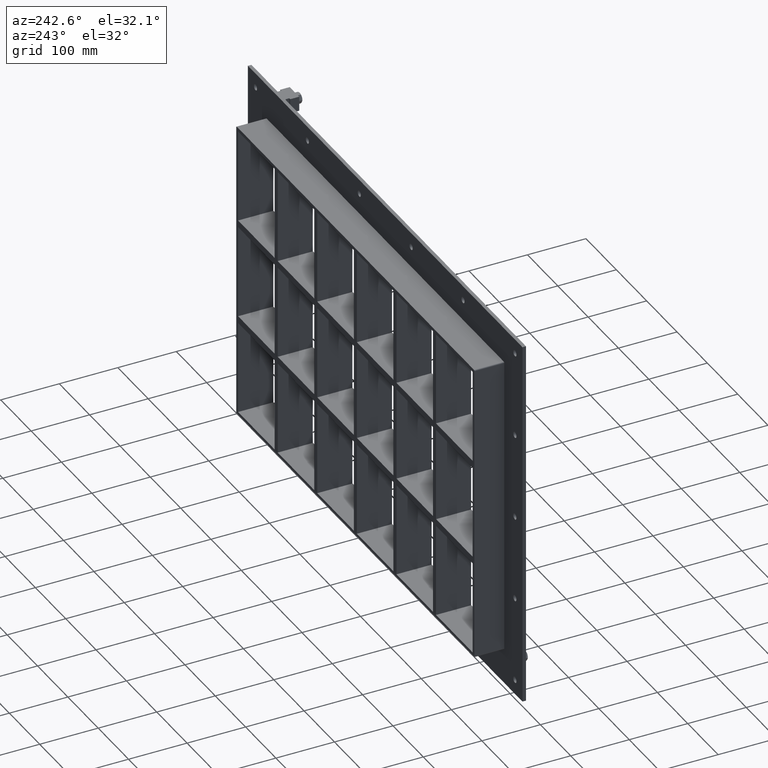
[diagram: clean part render]
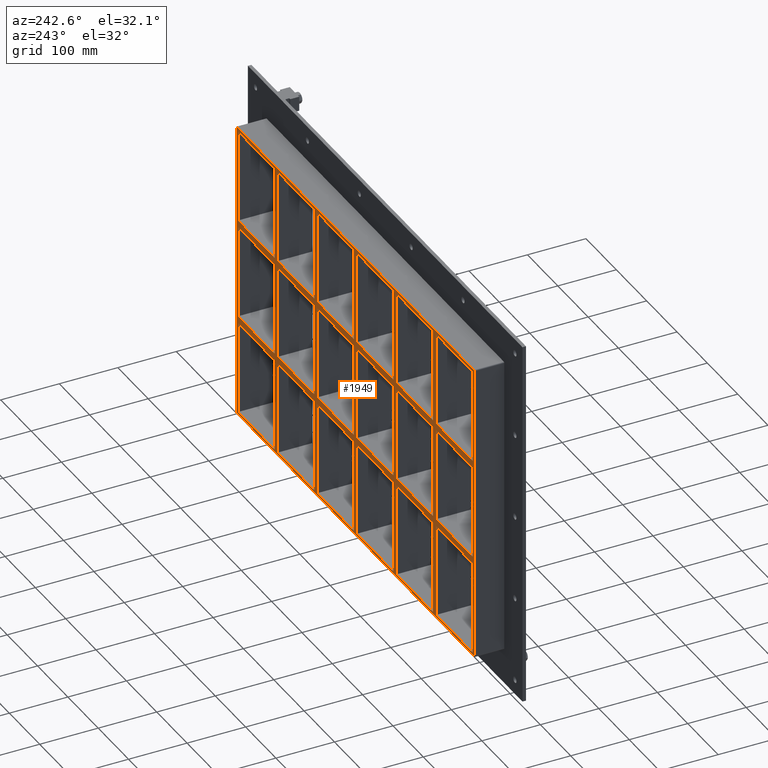
[diagram: same view with one face highlighted and labeled with its STEP entity id]
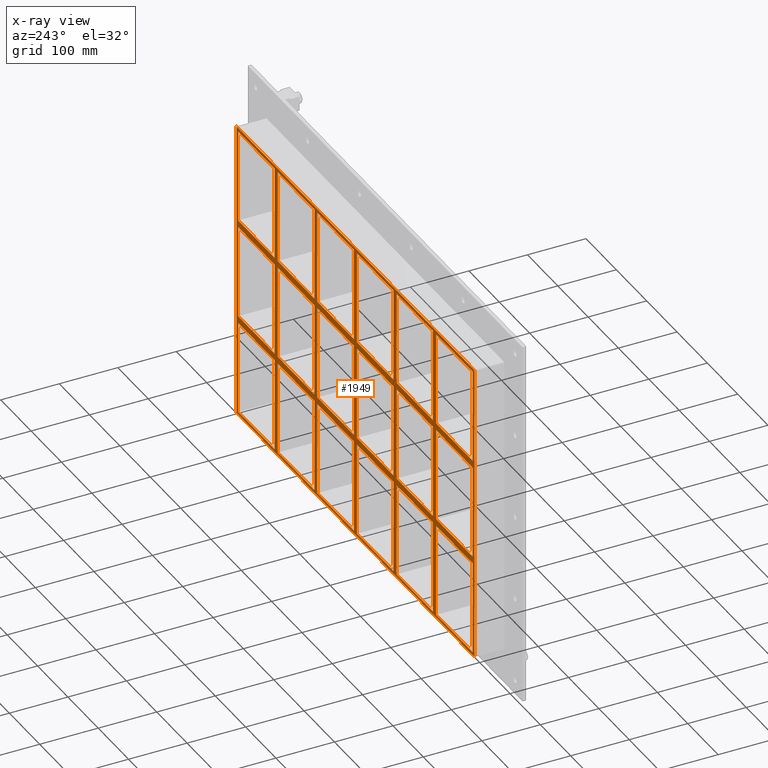
[diagram: x-ray of the same camera — body ghosted, the highlighted face saturated]
A machine part, auxiliary view. The second image highlights one B-rep face of the part: STEP entity #1949.
The next image is the same camera in x-ray: the body ghosted, the highlighted face saturated — about 0% of this face is hidden behind the body in this view.
In plain terms, the highlighted planar face has unit normal (0, 1, 0).
Its self-contained STEP definition (entity closure, byte-faithful):
#579=CARTESIAN_POINT('',(-266.00000000000028,57.0,79.749999999989143));
#580=VERTEX_POINT('',#579);
#595=CARTESIAN_POINT('',(-386.49999999999858,57.0,79.749999999989114));
#596=VERTEX_POINT('',#595);
#603=CARTESIAN_POINT('',(-266.00000000000023,57.0,79.749999999989114));
#604=DIRECTION('',(-1.0,0.0,0.0));
#605=VECTOR('',#604,120.49999999999841);
#606=LINE('',#603,#605);
#607=EDGE_CURVE('',#580,#596,#606,.T.);
#619=CARTESIAN_POINT('',(-135.50000000000026,57.0,79.749999999989114));
#620=VERTEX_POINT('',#619);
#635=CARTESIAN_POINT('',(-256.00000000000364,57.0,79.749999999989114));
#636=VERTEX_POINT('',#635);
#643=CARTESIAN_POINT('',(-135.50000000000023,57.0,79.749999999989114));
#644=DIRECTION('',(-1.0,0.0,0.0));
#645=VECTOR('',#644,120.50000000000341);
#646=LINE('',#643,#645);
#647=EDGE_CURVE('',#620,#636,#646,.T.);
#659=CARTESIAN_POINT('',(-5.000000000000213,57.0,79.749999999989129));
#660=VERTEX_POINT('',#659);
#675=CARTESIAN_POINT('',(-125.50000000000367,57.0,79.749999999989114));
#676=VERTEX_POINT('',#675);
#683=CARTESIAN_POINT('',(-5.000000000000227,57.0,79.749999999989129));
#684=DIRECTION('',(-1.0,0.0,0.0));
#685=VECTOR('',#684,120.50000000000341);
#686=LINE('',#683,#685);
#687=EDGE_CURVE('',#660,#676,#686,.T.);
#699=CARTESIAN_POINT('',(125.4999999999998,57.0,79.749999999989129));
#700=VERTEX_POINT('',#699);
#715=CARTESIAN_POINT('',(4.999999999996376,57.0,79.749999999989129));
#716=VERTEX_POINT('',#715);
#723=CARTESIAN_POINT('',(125.49999999999977,57.0,79.749999999989129));
#724=DIRECTION('',(-1.0,0.0,0.0));
#725=VECTOR('',#724,120.50000000000341);
#726=LINE('',#723,#725);
#727=EDGE_CURVE('',#700,#716,#726,.T.);
#737=CARTESIAN_POINT('',(265.99999999999642,57.0,79.749999999989129));
#738=VERTEX_POINT('',#737);
#747=CARTESIAN_POINT('',(386.49999999999642,57.0,79.749999999989143));
#748=VERTEX_POINT('',#747);
#749=CARTESIAN_POINT('',(386.49999999999636,57.0,79.749999999989143));
#750=DIRECTION('',(-1.0,0.0,0.0));
#751=VECTOR('',#750,120.49999999999994);
#752=LINE('',#749,#751);
#753=EDGE_CURVE('',#748,#738,#752,.T.);
#779=CARTESIAN_POINT('',(255.9999999999998,57.0,79.749999999989129));
#780=VERTEX_POINT('',#779);
#795=CARTESIAN_POINT('',(135.49999999999642,57.0,79.749999999989129));
#796=VERTEX_POINT('',#795);
#803=CARTESIAN_POINT('',(255.9999999999998,57.0,79.749999999989143));
#804=DIRECTION('',(-1.0,0.0,0.0));
#805=VECTOR('',#804,120.50000000000338);
#806=LINE('',#803,#805);
#807=EDGE_CURVE('',#780,#796,#806,.T.);
#817=CARTESIAN_POINT('',(-266.00000000000028,57.0,91.749999999999829));
#818=VERTEX_POINT('',#817);
#827=CARTESIAN_POINT('',(-386.49999999999858,57.0,91.749999999999801));
#828=VERTEX_POINT('',#827);
#829=CARTESIAN_POINT('',(-386.49999999999858,57.0,91.749999999999801));
#830=DIRECTION('',(1.0,0.0,0.0));
#831=VECTOR('',#830,120.49999999999829);
#832=LINE('',#829,#831);
#833=EDGE_CURVE('',#828,#818,#832,.T.);
#859=CARTESIAN_POINT('',(265.99999999999648,57.0,91.749999999999801));
#860=VERTEX_POINT('',#859);
#875=CARTESIAN_POINT('',(386.49999999999955,57.0,91.749999999999801));
#876=VERTEX_POINT('',#875);
#883=CARTESIAN_POINT('',(265.99999999999642,57.0,91.749999999999801));
#884=DIRECTION('',(1.0,0.0,0.0));
#885=VECTOR('',#884,120.50000000000318);
#886=LINE('',#883,#885);
#887=EDGE_CURVE('',#860,#876,#886,.T.);
#897=CARTESIAN_POINT('',(-135.50000000000026,57.0,91.749999999999801));
#898=VERTEX_POINT('',#897);
#907=CARTESIAN_POINT('',(-256.00000000000364,57.0,91.749999999999801));
#908=VERTEX_POINT('',#907);
#909=CARTESIAN_POINT('',(-256.00000000000364,57.0,91.749999999999801));
#910=DIRECTION('',(1.0,0.0,0.0));
#911=VECTOR('',#910,120.50000000000335);
#912=LINE('',#909,#911);
#913=EDGE_CURVE('',#908,#898,#912,.T.);
#937=CARTESIAN_POINT('',(-5.000000000000213,57.0,91.749999999999801));
#938=VERTEX_POINT('',#937);
#947=CARTESIAN_POINT('',(-125.50000000000364,57.0,91.749999999999801));
#948=VERTEX_POINT('',#947);
#949=CARTESIAN_POINT('',(-125.50000000000364,57.0,91.749999999999801));
#950=DIRECTION('',(1.0,0.0,0.0));
#951=VECTOR('',#950,120.50000000000341);
#952=LINE('',#949,#951);
#953=EDGE_CURVE('',#948,#938,#952,.T.);
#977=CARTESIAN_POINT('',(125.49999999999983,57.0,91.749999999999801));
#978=VERTEX_POINT('',#977);
#987=CARTESIAN_POINT('',(4.999999999996376,57.0,91.749999999999801));
#988=VERTEX_POINT('',#987);
#989=CARTESIAN_POINT('',(4.999999999996362,57.0,91.749999999999801));
#990=DIRECTION('',(1.0,0.0,0.0));
#991=VECTOR('',#990,120.50000000000347);
#992=LINE('',#989,#991);
#993=EDGE_CURVE('',#988,#978,#992,.T.);
#1017=CARTESIAN_POINT('',(255.99999999999989,57.0,91.749999999999801));
#1018=VERTEX_POINT('',#1017);
#1027=CARTESIAN_POINT('',(135.49999999999642,57.0,91.749999999999801));
#1028=VERTEX_POINT('',#1027);
#1029=CARTESIAN_POINT('',(135.49999999999642,57.0,91.749999999999801));
#1030=DIRECTION('',(1.0,0.0,0.0));
#1031=VECTOR('',#1030,120.50000000000341);
#1032=LINE('',#1029,#1031);
#1033=EDGE_CURVE('',#1028,#1018,#1032,.T.);
#1058=CARTESIAN_POINT('',(-386.50000000000006,57.0,251.25));
#1059=VERTEX_POINT('',#1058);
#1060=CARTESIAN_POINT('',(-386.50000000000006,57.0,251.25));
#1061=DIRECTION('',(0.0,0.0,-1.0));
#1062=VECTOR('',#1061,159.5000000000002);
#1063=LINE('',#1060,#1062);
#1064=EDGE_CURVE('',#1059,#828,#1063,.T.);
#1089=CARTESIAN_POINT('',(386.49999999999955,57.0,-79.750000000000227));
#1090=VERTEX_POINT('',#1089);
#1091=CARTESIAN_POINT('',(386.50000000000006,57.0,-79.750000000000227));
#1092=DIRECTION('',(0.0,0.0,1.0));
#1093=VECTOR('',#1092,159.49999999998937);
#1094=LINE('',#1091,#1093);
#1095=EDGE_CURVE('',#1090,#748,#1094,.T.);
#1128=CARTESIAN_POINT('',(386.50000000000006,57.0,251.25));
#1129=VERTEX_POINT('',#1128);
#1136=CARTESIAN_POINT('',(386.50000000000006,57.0,91.749999999999801));
#1137=DIRECTION('',(0.0,0.0,1.0));
#1138=VECTOR('',#1137,159.5000000000002);
#1139=LINE('',#1136,#1138);
#1140=EDGE_CURVE('',#876,#1129,#1139,.T.);
#1159=CARTESIAN_POINT('',(255.9999999999998,57.0,251.25));
#1160=VERTEX_POINT('',#1159);
#1167=CARTESIAN_POINT('',(255.9999999999998,57.0,91.749999999999829));
#1168=DIRECTION('',(0.0,0.0,1.0));
#1169=VECTOR('',#1168,159.50000000000017);
#1170=LINE('',#1167,#1169);
#1171=EDGE_CURVE('',#1018,#1160,#1170,.T.);
#1182=CARTESIAN_POINT('',(265.99999999999642,57.0,251.25));
#1183=VERTEX_POINT('',#1182);
#1184=CARTESIAN_POINT('',(265.99999999999642,57.0,251.25));
#1185=DIRECTION('',(0.0,0.0,-1.0));
#1186=VECTOR('',#1185,159.5000000000002);
#1187=LINE('',#1184,#1186);
#1188=EDGE_CURVE('',#1183,#860,#1187,.T.);
#1221=CARTESIAN_POINT('',(125.4999999999998,57.0,251.25));
#1222=VERTEX_POINT('',#1221);
#1229=CARTESIAN_POINT('',(125.4999999999998,57.0,91.749999999999829));
#1230=DIRECTION('',(0.0,0.0,1.0));
#1231=VECTOR('',#1230,159.50000000000017);
#1232=LINE('',#1229,#1231);
#1233=EDGE_CURVE('',#978,#1222,#1232,.T.);
#1244=CARTESIAN_POINT('',(135.49999999999642,57.0,251.25));
#1245=VERTEX_POINT('',#1244);
#1246=CARTESIAN_POINT('',(135.49999999999642,57.0,251.25));
#1247=DIRECTION('',(0.0,0.0,-1.0));
#1248=VECTOR('',#1247,159.5000000000002);
#1249=LINE('',#1246,#1248);
#1250=EDGE_CURVE('',#1245,#1028,#1249,.T.);
#1283=CARTESIAN_POINT('',(-5.000000000000249,57.0,251.25));
#1284=VERTEX_POINT('',#1283);
#1291=CARTESIAN_POINT('',(-5.000000000000237,57.0,91.749999999999829));
#1292=DIRECTION('',(0.0,0.0,1.0));
#1293=VECTOR('',#1292,159.50000000000017);
#1294=LINE('',#1291,#1293);
#1295=EDGE_CURVE('',#938,#1284,#1294,.T.);
#1306=CARTESIAN_POINT('',(4.999999999996376,57.0,251.25));
#1307=VERTEX_POINT('',#1306);
#1308=CARTESIAN_POINT('',(4.999999999996376,57.0,251.25));
#1309=DIRECTION('',(0.0,0.0,-1.0));
#1310=VECTOR('',#1309,159.5000000000002);
#1311=LINE('',#1308,#1310);
#1312=EDGE_CURVE('',#1307,#988,#1311,.T.);
#1345=CARTESIAN_POINT('',(-135.50000000000026,57.0,251.25));
#1346=VERTEX_POINT('',#1345);
#1353=CARTESIAN_POINT('',(-135.50000000000026,57.0,91.749999999999829));
#1354=DIRECTION('',(0.0,0.0,1.0));
#1355=VECTOR('',#1354,159.50000000000017);
#1356=LINE('',#1353,#1355);
#1357=EDGE_CURVE('',#898,#1346,#1356,.T.);
#1368=CARTESIAN_POINT('',(-125.50000000000364,57.0,251.25));
#1369=VERTEX_POINT('',#1368);
#1370=CARTESIAN_POINT('',(-125.50000000000364,57.0,251.25));
#1371=DIRECTION('',(0.0,0.0,-1.0));
#1372=VECTOR('',#1371,159.5000000000002);
#1373=LINE('',#1370,#1372);
#1374=EDGE_CURVE('',#1369,#948,#1373,.T.);
#1407=CARTESIAN_POINT('',(-266.00000000000028,57.0,251.25));
#1408=VERTEX_POINT('',#1407);
#1415=CARTESIAN_POINT('',(-266.00000000000023,57.0,91.749999999999829));
#1416=DIRECTION('',(0.0,0.0,1.0));
#1417=VECTOR('',#1416,159.50000000000017);
#1418=LINE('',#1415,#1417);
#1419=EDGE_CURVE('',#818,#1408,#1418,.T.);
#1430=CARTESIAN_POINT('',(-266.00000000000023,57.0,-79.750000000000227));
#1431=VERTEX_POINT('',#1430);
#1432=CARTESIAN_POINT('',(-266.00000000000023,57.0,-79.750000000000227));
#1433=DIRECTION('',(0.0,0.0,1.0));
#1434=VECTOR('',#1433,159.49999999998937);
#1435=LINE('',#1432,#1434);
#1436=EDGE_CURVE('',#1431,#580,#1435,.T.);
#1461=CARTESIAN_POINT('',(-256.00000000000364,57.0,251.25));
#1462=VERTEX_POINT('',#1461);
#1463=CARTESIAN_POINT('',(-256.00000000000364,57.0,251.25));
#1464=DIRECTION('',(0.0,0.0,-1.0));
#1465=VECTOR('',#1464,159.5000000000002);
#1466=LINE('',#1463,#1465);
#1467=EDGE_CURVE('',#1462,#908,#1466,.T.);
#1486=CARTESIAN_POINT('',(3.697611E-014,57.0,0.0));
#1487=DIRECTION('',(0.0,1.0,0.0));
#1488=DIRECTION('',(0.0,0.0,1.0));
#1489=AXIS2_PLACEMENT_3D('',#1486,#1487,#1488);
#1490=PLANE('',#1489);
#1491=CARTESIAN_POINT('',(-392.50000000000006,57.0,-255.25000000000003));
#1492=VERTEX_POINT('',#1491);
#1493=CARTESIAN_POINT('',(392.50000000000011,57.0,-255.25));
#1494=VERTEX_POINT('',#1493);
#1495=CARTESIAN_POINT('',(-392.5,57.0,-255.25000000000003));
#1496=DIRECTION('',(1.0,0.0,0.0));
#1497=VECTOR('',#1496,785.00000000000011);
#1498=LINE('',#1495,#1497);
#1499=EDGE_CURVE('',#1492,#1494,#1498,.T.);
#1500=ORIENTED_EDGE('',*,*,#1499,.F.);
#1501=CARTESIAN_POINT('',(-392.50000000000006,57.0,255.25));
#1502=VERTEX_POINT('',#1501);
#1503=CARTESIAN_POINT('',(-392.50000000000006,57.0,-255.25));
#1504=DIRECTION('',(0.0,0.0,1.0));
#1505=VECTOR('',#1504,510.5);
#1506=LINE('',#1503,#1505);
#1507=EDGE_CURVE('',#1492,#1502,#1506,.T.);
#1508=ORIENTED_EDGE('',*,*,#1507,.T.);
#1509=CARTESIAN_POINT('',(-390.50000000000006,57.0,257.25));
#1510=VERTEX_POINT('',#1509);
#1511=CARTESIAN_POINT('',(-390.50000000000006,57.0,255.25));
#1512=DIRECTION('',(0.0,-1.0,0.0));
#1513=DIRECTION('',(-0.707106781186548,0.0,0.707106781186548));
#1514=AXIS2_PLACEMENT_3D('',#1511,#1512,#1513);
#1515=CIRCLE('',#1514,2.0);
#1516=EDGE_CURVE('',#1510,#1502,#1515,.T.);
#1517=ORIENTED_EDGE('',*,*,#1516,.F.);
#1518=CARTESIAN_POINT('',(390.50000000000011,57.0,257.25));
#1519=VERTEX_POINT('',#1518);
#1520=CARTESIAN_POINT('',(-390.5,57.0,257.25));
#1521=DIRECTION('',(1.0,0.0,0.0));
#1522=VECTOR('',#1521,781.00000000000011);
#1523=LINE('',#1520,#1522);
#1524=EDGE_CURVE('',#1510,#1519,#1523,.T.);
#1525=ORIENTED_EDGE('',*,*,#1524,.T.);
#1526=CARTESIAN_POINT('',(392.50000000000011,57.0,255.25000000000003));
#1527=VERTEX_POINT('',#1526);
#1528=CARTESIAN_POINT('',(390.50000000000011,57.0,255.25000000000003));
#1529=DIRECTION('',(0.0,-1.0,0.0));
#1530=DIRECTION('',(0.70710678118656,0.0,0.707106781186535));
#1531=AXIS2_PLACEMENT_3D('',#1528,#1529,#1530);
#1532=CIRCLE('',#1531,2.0);
#1533=EDGE_CURVE('',#1527,#1519,#1532,.T.);
#1534=ORIENTED_EDGE('',*,*,#1533,.F.);
#1535=CARTESIAN_POINT('',(392.50000000000011,57.0,255.25));
#1536=DIRECTION('',(0.0,0.0,-1.0));
#1537=VECTOR('',#1536,510.5);
#1538=LINE('',#1535,#1537);
#1539=EDGE_CURVE('',#1527,#1494,#1538,.T.);
#1540=ORIENTED_EDGE('',*,*,#1539,.T.);
#1541=EDGE_LOOP('',(#1500,#1508,#1517,#1525,#1534,#1540));
#1542=FACE_OUTER_BOUND('',#1541,.T.);
#1543=CARTESIAN_POINT('',(-386.49999999999858,57.0,-79.750000000000227));
#1544=VERTEX_POINT('',#1543);
#1545=CARTESIAN_POINT('',(-386.50000000000006,57.0,79.749999999989114));
#1546=DIRECTION('',(0.0,0.0,-1.0));
#1547=VECTOR('',#1546,159.49999999998934);
#1548=LINE('',#1545,#1547);
#1549=EDGE_CURVE('',#596,#1544,#1548,.T.);
#1550=ORIENTED_EDGE('',*,*,#1549,.T.);
#1551=CARTESIAN_POINT('',(-386.49999999999858,57.0,-79.750000000000227));
#1552=DIRECTION('',(1.0,0.0,0.0));
#1553=VECTOR('',#1552,120.49999999999835);
#1554=LINE('',#1551,#1553);
#1555=EDGE_CURVE('',#1544,#1431,#1554,.T.);
#1556=ORIENTED_EDGE('',*,*,#1555,.T.);
#1557=ORIENTED_EDGE('',*,*,#1436,.T.);
#1558=ORIENTED_EDGE('',*,*,#607,.T.);
#1559=EDGE_LOOP('',(#1550,#1556,#1557,#1558));
#1560=FACE_BOUND('',#1559,.T.);
#1561=ORIENTED_EDGE('',*,*,#1140,.T.);
#1562=CARTESIAN_POINT('',(386.50000000000011,57.0,251.25));
#1563=DIRECTION('',(-1.0,0.0,0.0));
#1564=VECTOR('',#1563,120.50000000000369);
#1565=LINE('',#1562,#1564);
#1566=EDGE_CURVE('',#1129,#1183,#1565,.T.);
#1567=ORIENTED_EDGE('',*,*,#1566,.T.);
#1568=ORIENTED_EDGE('',*,*,#1188,.T.);
#1569=ORIENTED_EDGE('',*,*,#887,.T.);
#1570=EDGE_LOOP('',(#1561,#1567,#1568,#1569));
#1571=FACE_BOUND('',#1570,.T.);
#1572=ORIENTED_EDGE('',*,*,#1171,.T.);
#1573=CARTESIAN_POINT('',(255.99999999999983,57.0,251.25));
#1574=DIRECTION('',(-1.0,0.0,0.0));
#1575=VECTOR('',#1574,120.50000000000335);
#1576=LINE('',#1573,#1575);
#1577=EDGE_CURVE('',#1160,#1245,#1576,.T.);
#1578=ORIENTED_EDGE('',*,*,#1577,.T.);
#1579=ORIENTED_EDGE('',*,*,#1250,.T.);
#1580=ORIENTED_EDGE('',*,*,#1033,.T.);
#1581=EDGE_LOOP('',(#1572,#1578,#1579,#1580));
#1582=FACE_BOUND('',#1581,.T.);
#1583=ORIENTED_EDGE('',*,*,#1233,.T.);
#1584=CARTESIAN_POINT('',(125.49999999999977,57.0,251.25));
#1585=DIRECTION('',(-1.0,0.0,0.0));
#1586=VECTOR('',#1585,120.50000000000341);
#1587=LINE('',#1584,#1586);
#1588=EDGE_CURVE('',#1222,#1307,#1587,.T.);
#1589=ORIENTED_EDGE('',*,*,#1588,.T.);
#1590=ORIENTED_EDGE('',*,*,#1312,.T.);
#1591=ORIENTED_EDGE('',*,*,#993,.T.);
#1592=EDGE_LOOP('',(#1583,#1589,#1590,#1591));
#1593=FACE_BOUND('',#1592,.T.);
#1594=ORIENTED_EDGE('',*,*,#1295,.T.);
#1595=CARTESIAN_POINT('',(-5.000000000000256,57.0,251.25));
#1596=DIRECTION('',(-1.0,0.0,0.0));
#1597=VECTOR('',#1596,120.50000000000338);
#1598=LINE('',#1595,#1597);
#1599=EDGE_CURVE('',#1284,#1369,#1598,.T.);
#1600=ORIENTED_EDGE('',*,*,#1599,.T.);
#1601=ORIENTED_EDGE('',*,*,#1374,.T.);
#1602=ORIENTED_EDGE('',*,*,#953,.T.);
#1603=EDGE_LOOP('',(#1594,#1600,#1601,#1602));
#1604=FACE_BOUND('',#1603,.T.);
#1605=ORIENTED_EDGE('',*,*,#1357,.T.);
#1606=CARTESIAN_POINT('',(-135.50000000000026,57.0,251.25));
#1607=DIRECTION('',(-1.0,0.0,0.0));
#1608=VECTOR('',#1607,120.50000000000338);
#1609=LINE('',#1606,#1608);
#1610=EDGE_CURVE('',#1346,#1462,#1609,.T.);
#1611=ORIENTED_EDGE('',*,*,#1610,.T.);
#1612=ORIENTED_EDGE('',*,*,#1467,.T.);
#1613=ORIENTED_EDGE('',*,*,#913,.T.);
#1614=EDGE_LOOP('',(#1605,#1611,#1612,#1613));
#1615=FACE_BOUND('',#1614,.T.);
#1616=ORIENTED_EDGE('',*,*,#753,.T.);
#1617=CARTESIAN_POINT('',(265.99999999999642,57.0,-79.750000000000227));
#1618=VERTEX_POINT('',#1617);
#1619=CARTESIAN_POINT('',(265.99999999999642,57.0,79.749999999989143));
#1620=DIRECTION('',(0.0,0.0,-1.0));
#1621=VECTOR('',#1620,159.49999999998937);
#1622=LINE('',#1619,#1621);
#1623=EDGE_CURVE('',#738,#1618,#1622,.T.);
#1624=ORIENTED_EDGE('',*,*,#1623,.T.);
#1625=CARTESIAN_POINT('',(265.99999999999642,57.0,-79.750000000000227));
#1626=DIRECTION('',(1.0,0.0,0.0));
#1627=VECTOR('',#1626,120.50000000000318);
#1628=LINE('',#1625,#1627);
#1629=EDGE_CURVE('',#1618,#1090,#1628,.T.);
#1630=ORIENTED_EDGE('',*,*,#1629,.T.);
#1631=ORIENTED_EDGE('',*,*,#1095,.T.);
#1632=EDGE_LOOP('',(#1616,#1624,#1630,#1631));
#1633=FACE_BOUND('',#1632,.T.);
#1634=ORIENTED_EDGE('',*,*,#807,.T.);
#1635=CARTESIAN_POINT('',(135.49999999999642,57.0,-79.750000000000227));
#1636=VERTEX_POINT('',#1635);
#1637=CARTESIAN_POINT('',(135.49999999999642,57.0,79.749999999989143));
#1638=DIRECTION('',(0.0,0.0,-1.0));
#1639=VECTOR('',#1638,159.49999999998937);
#1640=LINE('',#1637,#1639);
#1641=EDGE_CURVE('',#796,#1636,#1640,.T.);
#1642=ORIENTED_EDGE('',*,*,#1641,.T.);
#1643=CARTESIAN_POINT('',(255.99999999999983,57.0,-79.750000000000227));
#1644=VERTEX_POINT('',#1643);
#1645=CARTESIAN_POINT('',(135.49999999999642,57.0,-79.750000000000227));
#1646=DIRECTION('',(1.0,0.0,0.0));
#1647=VECTOR('',#1646,120.50000000000341);
#1648=LINE('',#1645,#1647);
#1649=EDGE_CURVE('',#1636,#1644,#1648,.T.);
#1650=ORIENTED_EDGE('',*,*,#1649,.T.);
#1651=CARTESIAN_POINT('',(255.99999999999983,57.0,-79.750000000000227));
#1652=DIRECTION('',(0.0,0.0,1.0));
#1653=VECTOR('',#1652,159.49999999998937);
#1654=LINE('',#1651,#1653);
#1655=EDGE_CURVE('',#1644,#780,#1654,.T.);
#1656=ORIENTED_EDGE('',*,*,#1655,.T.);
#1657=EDGE_LOOP('',(#1634,#1642,#1650,#1656));
#1658=FACE_BOUND('',#1657,.T.);
#1659=ORIENTED_EDGE('',*,*,#727,.T.);
#1660=CARTESIAN_POINT('',(4.999999999996376,57.0,-79.750000000000227));
#1661=VERTEX_POINT('',#1660);
#1662=CARTESIAN_POINT('',(4.999999999996376,57.0,79.749999999989143));
#1663=DIRECTION('',(0.0,0.0,-1.0));
#1664=VECTOR('',#1663,159.49999999998937);
#1665=LINE('',#1662,#1664);
#1666=EDGE_CURVE('',#716,#1661,#1665,.T.);
#1667=ORIENTED_EDGE('',*,*,#1666,.T.);
#1668=CARTESIAN_POINT('',(125.49999999999982,57.0,-79.750000000000227));
#1669=VERTEX_POINT('',#1668);
#1670=CARTESIAN_POINT('',(4.999999999996362,57.0,-79.750000000000227));
#1671=DIRECTION('',(1.0,0.0,0.0));
#1672=VECTOR('',#1671,120.50000000000347);
#1673=LINE('',#1670,#1672);
#1674=EDGE_CURVE('',#1661,#1669,#1673,.T.);
#1675=ORIENTED_EDGE('',*,*,#1674,.T.);
#1676=CARTESIAN_POINT('',(125.49999999999982,57.0,-79.750000000000227));
#1677=DIRECTION('',(0.0,0.0,1.0));
#1678=VECTOR('',#1677,159.49999999998937);
#1679=LINE('',#1676,#1678);
#1680=EDGE_CURVE('',#1669,#700,#1679,.T.);
#1681=ORIENTED_EDGE('',*,*,#1680,.T.);
#1682=EDGE_LOOP('',(#1659,#1667,#1675,#1681));
#1683=FACE_BOUND('',#1682,.T.);
#1684=ORIENTED_EDGE('',*,*,#687,.T.);
#1685=CARTESIAN_POINT('',(-125.50000000000364,57.0,-79.750000000000227));
#1686=VERTEX_POINT('',#1685);
#1687=CARTESIAN_POINT('',(-125.50000000000364,57.0,79.749999999989114));
#1688=DIRECTION('',(0.0,0.0,-1.0));
#1689=VECTOR('',#1688,159.49999999998934);
#1690=LINE('',#1687,#1689);
#1691=EDGE_CURVE('',#676,#1686,#1690,.T.);
#1692=ORIENTED_EDGE('',*,*,#1691,.T.);
#1693=CARTESIAN_POINT('',(-5.000000000000226,57.0,-79.750000000000227));
#1694=VERTEX_POINT('',#1693);
#1695=CARTESIAN_POINT('',(-125.50000000000364,57.0,-79.750000000000227));
#1696=DIRECTION('',(1.0,0.0,0.0));
#1697=VECTOR('',#1696,120.50000000000341);
#1698=LINE('',#1695,#1697);
#1699=EDGE_CURVE('',#1686,#1694,#1698,.T.);
#1700=ORIENTED_EDGE('',*,*,#1699,.T.);
#1701=CARTESIAN_POINT('',(-5.000000000000226,57.0,-79.750000000000227));
#1702=DIRECTION('',(0.0,0.0,1.0));
#1703=VECTOR('',#1702,159.49999999998937);
#1704=LINE('',#1701,#1703);
#1705=EDGE_CURVE('',#1694,#660,#1704,.T.);
#1706=ORIENTED_EDGE('',*,*,#1705,.T.);
#1707=EDGE_LOOP('',(#1684,#1692,#1700,#1706));
#1708=FACE_BOUND('',#1707,.T.);
#1709=ORIENTED_EDGE('',*,*,#647,.T.);
#1710=CARTESIAN_POINT('',(-256.00000000000364,57.0,-79.750000000000227));
#1711=VERTEX_POINT('',#1710);
#1712=CARTESIAN_POINT('',(-256.00000000000364,57.0,79.749999999989114));
#1713=DIRECTION('',(0.0,0.0,-1.0));
#1714=VECTOR('',#1713,159.49999999998934);
#1715=LINE('',#1712,#1714);
#1716=EDGE_CURVE('',#636,#1711,#1715,.T.);
#1717=ORIENTED_EDGE('',*,*,#1716,.T.);
#1718=CARTESIAN_POINT('',(-135.50000000000023,57.0,-79.750000000000227));
#1719=VERTEX_POINT('',#1718);
#1720=CARTESIAN_POINT('',(-256.00000000000364,57.0,-79.750000000000227));
#1721=DIRECTION('',(1.0,0.0,0.0));
#1722=VECTOR('',#1721,120.50000000000335);
#1723=LINE('',#1720,#1722);
#1724=EDGE_CURVE('',#1711,#1719,#1723,.T.);
#1725=ORIENTED_EDGE('',*,*,#1724,.T.);
#1726=CARTESIAN_POINT('',(-135.50000000000023,57.0,-79.750000000000227));
#1727=DIRECTION('',(0.0,0.0,1.0));
#1728=VECTOR('',#1727,159.49999999998937);
#1729=LINE('',#1726,#1728);
#1730=EDGE_CURVE('',#1719,#620,#1729,.T.);
#1731=ORIENTED_EDGE('',*,*,#1730,.T.);
#1732=EDGE_LOOP('',(#1709,#1717,#1725,#1731));
#1733=FACE_BOUND('',#1732,.T.);
#1734=CARTESIAN_POINT('',(-386.49999999999858,57.0,-91.750000000010914));
#1735=VERTEX_POINT('',#1734);
#1736=CARTESIAN_POINT('',(-386.50000000000006,57.0,-251.25));
#1737=VERTEX_POINT('',#1736);
#1738=CARTESIAN_POINT('',(-386.50000000000006,57.0,-91.750000000010914));
#1739=DIRECTION('',(0.0,0.0,-1.0));
#1740=VECTOR('',#1739,159.49999999998909);
#1741=LINE('',#1738,#1740);
#1742=EDGE_CURVE('',#1735,#1737,#1741,.T.);
#1743=ORIENTED_EDGE('',*,*,#1742,.T.);
#1744=CARTESIAN_POINT('',(-266.00000000000023,57.0,-251.25));
#1745=VERTEX_POINT('',#1744);
#1746=CARTESIAN_POINT('',(-386.50000000000006,57.0,-251.25));
#1747=DIRECTION('',(1.0,0.0,0.0));
#1748=VECTOR('',#1747,120.49999999999989);
#1749=LINE('',#1746,#1748);
#1750=EDGE_CURVE('',#1737,#1745,#1749,.T.);
#1751=ORIENTED_EDGE('',*,*,#1750,.T.);
#1752=CARTESIAN_POINT('',(-266.00000000000023,57.0,-91.750000000010914));
#1753=VERTEX_POINT('',#1752);
#1754=CARTESIAN_POINT('',(-266.00000000000023,57.0,-251.25));
#1755=DIRECTION('',(0.0,0.0,1.0));
#1756=VECTOR('',#1755,159.49999999998909);
#1757=LINE('',#1754,#1756);
#1758=EDGE_CURVE('',#1745,#1753,#1757,.T.);
#1759=ORIENTED_EDGE('',*,*,#1758,.T.);
#1760=CARTESIAN_POINT('',(-266.00000000000023,57.0,-91.750000000010914));
#1761=DIRECTION('',(-1.0,0.0,0.0));
#1762=VECTOR('',#1761,120.49999999999841);
#1763=LINE('',#1760,#1762);
#1764=EDGE_CURVE('',#1753,#1735,#1763,.T.);
#1765=ORIENTED_EDGE('',*,*,#1764,.T.);
#1766=EDGE_LOOP('',(#1743,#1751,#1759,#1765));
#1767=FACE_BOUND('',#1766,.T.);
#1768=CARTESIAN_POINT('',(-135.50000000000023,57.0,-251.25));
#1769=VERTEX_POINT('',#1768);
#1770=CARTESIAN_POINT('',(-135.50000000000023,57.0,-91.7500000000109));
#1771=VERTEX_POINT('',#1770);
#1772=CARTESIAN_POINT('',(-135.50000000000023,57.0,-251.25));
#1773=DIRECTION('',(0.0,0.0,1.0));
#1774=VECTOR('',#1773,159.49999999998911);
#1775=LINE('',#1772,#1774);
#1776=EDGE_CURVE('',#1769,#1771,#1775,.T.);
#1777=ORIENTED_EDGE('',*,*,#1776,.T.);
#1778=CARTESIAN_POINT('',(-256.00000000000364,57.0,-91.750000000010914));
#1779=VERTEX_POINT('',#1778);
#1780=CARTESIAN_POINT('',(-135.50000000000023,57.0,-91.750000000010914));
#1781=DIRECTION('',(-1.0,0.0,0.0));
#1782=VECTOR('',#1781,120.50000000000341);
#1783=LINE('',#1780,#1782);
#1784=EDGE_CURVE('',#1771,#1779,#1783,.T.);
#1785=ORIENTED_EDGE('',*,*,#1784,.T.);
#1786=CARTESIAN_POINT('',(-256.00000000000364,57.0,-251.24999999998175));
#1787=VERTEX_POINT('',#1786);
#1788=CARTESIAN_POINT('',(-256.00000000000364,57.0,-91.750000000010914));
#1789=DIRECTION('',(0.0,0.0,-1.0));
#1790=VECTOR('',#1789,159.49999999997084);
#1791=LINE('',#1788,#1790);
#1792=EDGE_CURVE('',#1779,#1787,#1791,.T.);
#1793=ORIENTED_EDGE('',*,*,#1792,.T.);
#1794=CARTESIAN_POINT('',(-256.00000000000358,57.0,-251.25));
#1795=DIRECTION('',(1.0,0.0,0.0));
#1796=VECTOR('',#1795,120.50000000000335);
#1797=LINE('',#1794,#1796);
#1798=EDGE_CURVE('',#1787,#1769,#1797,.T.);
#1799=ORIENTED_EDGE('',*,*,#1798,.T.);
#1800=EDGE_LOOP('',(#1777,#1785,#1793,#1799));
#1801=FACE_BOUND('',#1800,.T.);
#1802=CARTESIAN_POINT('',(-5.000000000000213,57.0,-251.25));
#1803=VERTEX_POINT('',#1802);
#1804=CARTESIAN_POINT('',(-5.000000000000224,57.0,-91.7500000000109));
#1805=VERTEX_POINT('',#1804);
#1806=CARTESIAN_POINT('',(-5.000000000000213,57.0,-251.25));
#1807=DIRECTION('',(0.0,0.0,1.0));
#1808=VECTOR('',#1807,159.49999999998911);
#1809=LINE('',#1806,#1808);
#1810=EDGE_CURVE('',#1803,#1805,#1809,.T.);
#1811=ORIENTED_EDGE('',*,*,#1810,.T.);
#1812=CARTESIAN_POINT('',(-125.50000000000364,57.0,-91.750000000010914));
#1813=VERTEX_POINT('',#1812);
#1814=CARTESIAN_POINT('',(-5.000000000000227,57.0,-91.7500000000109));
#1815=DIRECTION('',(-1.0,0.0,0.0));
#1816=VECTOR('',#1815,120.50000000000341);
#1817=LINE('',#1814,#1816);
#1818=EDGE_CURVE('',#1805,#1813,#1817,.T.);
#1819=ORIENTED_EDGE('',*,*,#1818,.T.);
#1820=CARTESIAN_POINT('',(-125.50000000000364,57.0,-251.24999999998175));
#1821=VERTEX_POINT('',#1820);
#1822=CARTESIAN_POINT('',(-125.50000000000364,57.0,-91.750000000010914));
#1823=DIRECTION('',(0.0,0.0,-1.0));
#1824=VECTOR('',#1823,159.49999999997084);
#1825=LINE('',#1822,#1824);
#1826=EDGE_CURVE('',#1813,#1821,#1825,.T.);
#1827=ORIENTED_EDGE('',*,*,#1826,.T.);
#1828=CARTESIAN_POINT('',(-125.50000000000364,57.0,-251.25));
#1829=DIRECTION('',(1.0,0.0,0.0));
#1830=VECTOR('',#1829,120.50000000000341);
#1831=LINE('',#1828,#1830);
#1832=EDGE_CURVE('',#1821,#1803,#1831,.T.);
#1833=ORIENTED_EDGE('',*,*,#1832,.T.);
#1834=EDGE_LOOP('',(#1811,#1819,#1827,#1833));
#1835=FACE_BOUND('',#1834,.T.);
#1836=CARTESIAN_POINT('',(125.49999999999983,57.0,-251.25));
#1837=VERTEX_POINT('',#1836);
#1838=CARTESIAN_POINT('',(125.49999999999982,57.0,-91.7500000000109));
#1839=VERTEX_POINT('',#1838);
#1840=CARTESIAN_POINT('',(125.49999999999983,57.0,-251.25));
#1841=DIRECTION('',(0.0,0.0,1.0));
#1842=VECTOR('',#1841,159.49999999998911);
#1843=LINE('',#1840,#1842);
#1844=EDGE_CURVE('',#1837,#1839,#1843,.T.);
#1845=ORIENTED_EDGE('',*,*,#1844,.T.);
#1846=CARTESIAN_POINT('',(4.999999999996376,57.0,-91.750000000010914));
#1847=VERTEX_POINT('',#1846);
#1848=CARTESIAN_POINT('',(125.49999999999983,57.0,-91.7500000000109));
#1849=DIRECTION('',(-1.0,0.0,0.0));
#1850=VECTOR('',#1849,120.50000000000347);
#1851=LINE('',#1848,#1850);
#1852=EDGE_CURVE('',#1839,#1847,#1851,.T.);
#1853=ORIENTED_EDGE('',*,*,#1852,.T.);
#1854=CARTESIAN_POINT('',(4.999999999996376,57.0,-251.24999999998175));
#1855=VERTEX_POINT('',#1854);
#1856=CARTESIAN_POINT('',(4.999999999996376,57.0,-91.750000000010914));
#1857=DIRECTION('',(0.0,0.0,-1.0));
#1858=VECTOR('',#1857,159.49999999997084);
#1859=LINE('',#1856,#1858);
#1860=EDGE_CURVE('',#1847,#1855,#1859,.T.);
#1861=ORIENTED_EDGE('',*,*,#1860,.T.);
#1862=CARTESIAN_POINT('',(4.999999999996362,57.0,-251.25));
#1863=DIRECTION('',(1.0,0.0,0.0));
#1864=VECTOR('',#1863,120.50000000000347);
#1865=LINE('',#1862,#1864);
#1866=EDGE_CURVE('',#1855,#1837,#1865,.T.);
#1867=ORIENTED_EDGE('',*,*,#1866,.T.);
#1868=EDGE_LOOP('',(#1845,#1853,#1861,#1867));
#1869=FACE_BOUND('',#1868,.T.);
#1870=CARTESIAN_POINT('',(255.99999999999983,57.0,-251.25));
#1871=VERTEX_POINT('',#1870);
#1872=CARTESIAN_POINT('',(255.99999999999983,57.0,-91.750000000010886));
#1873=VERTEX_POINT('',#1872);
#1874=CARTESIAN_POINT('',(255.99999999999983,57.0,-251.25));
#1875=DIRECTION('',(0.0,0.0,1.0));
#1876=VECTOR('',#1875,159.49999999998911);
#1877=LINE('',#1874,#1876);
#1878=EDGE_CURVE('',#1871,#1873,#1877,.T.);
#1879=ORIENTED_EDGE('',*,*,#1878,.T.);
#1880=CARTESIAN_POINT('',(135.49999999999642,57.0,-91.750000000010914));
#1881=VERTEX_POINT('',#1880);
#1882=CARTESIAN_POINT('',(255.99999999999983,57.0,-91.750000000010886));
#1883=DIRECTION('',(-1.0,0.0,0.0));
#1884=VECTOR('',#1883,120.50000000000341);
#1885=LINE('',#1882,#1884);
#1886=EDGE_CURVE('',#1873,#1881,#1885,.T.);
#1887=ORIENTED_EDGE('',*,*,#1886,.T.);
#1888=CARTESIAN_POINT('',(135.49999999999642,57.0,-251.24999999998175));
#1889=VERTEX_POINT('',#1888);
#1890=CARTESIAN_POINT('',(135.49999999999642,57.0,-91.750000000010914));
#1891=DIRECTION('',(0.0,0.0,-1.0));
#1892=VECTOR('',#1891,159.49999999997084);
#1893=LINE('',#1890,#1892);
#1894=EDGE_CURVE('',#1881,#1889,#1893,.T.);
#1895=ORIENTED_EDGE('',*,*,#1894,.T.);
#1896=CARTESIAN_POINT('',(135.49999999999642,57.0,-251.25));
#1897=DIRECTION('',(1.0,0.0,0.0));
#1898=VECTOR('',#1897,120.50000000000341);
#1899=LINE('',#1896,#1898);
#1900=EDGE_CURVE('',#1889,#1871,#1899,.T.);
#1901=ORIENTED_EDGE('',*,*,#1900,.T.);
#1902=EDGE_LOOP('',(#1879,#1887,#1895,#1901));
#1903=FACE_BOUND('',#1902,.T.);
#1904=ORIENTED_EDGE('',*,*,#833,.T.);
#1905=ORIENTED_EDGE('',*,*,#1419,.T.);
#1906=CARTESIAN_POINT('',(-266.00000000000028,57.0,251.25));
#1907=DIRECTION('',(-1.0,0.0,0.0));
#1908=VECTOR('',#1907,120.49999999999977);
#1909=LINE('',#1906,#1908);
#1910=EDGE_CURVE('',#1408,#1059,#1909,.T.);
#1911=ORIENTED_EDGE('',*,*,#1910,.T.);
#1912=ORIENTED_EDGE('',*,*,#1064,.T.);
#1913=EDGE_LOOP('',(#1904,#1905,#1911,#1912));
#1914=FACE_BOUND('',#1913,.T.);
#1915=CARTESIAN_POINT('',(265.99999999999642,57.0,-251.24999999998175));
#1916=VERTEX_POINT('',#1915);
#1917=CARTESIAN_POINT('',(386.50000000000006,57.0,-251.25));
#1918=VERTEX_POINT('',#1917);
#1919=CARTESIAN_POINT('',(265.99999999999642,57.0,-251.25));
#1920=DIRECTION('',(1.0,0.0,0.0));
#1921=VECTOR('',#1920,120.50000000000364);
#1922=LINE('',#1919,#1921);
#1923=EDGE_CURVE('',#1916,#1918,#1922,.T.);
#1924=ORIENTED_EDGE('',*,*,#1923,.T.);
#1925=CARTESIAN_POINT('',(386.49999999999642,57.0,-91.750000000010886));
#1926=VERTEX_POINT('',#1925);
#1927=CARTESIAN_POINT('',(386.50000000000006,57.0,-251.25));
#1928=DIRECTION('',(0.0,0.0,1.0));
#1929=VECTOR('',#1928,159.49999999998911);
#1930=LINE('',#1927,#1929);
#1931=EDGE_CURVE('',#1918,#1926,#1930,.T.);
#1932=ORIENTED_EDGE('',*,*,#1931,.T.);
#1933=CARTESIAN_POINT('',(265.99999999999642,57.0,-91.750000000010914));
#1934=VERTEX_POINT('',#1933);
#1935=CARTESIAN_POINT('',(386.49999999999636,57.0,-91.750000000010886));
#1936=DIRECTION('',(-1.0,0.0,0.0));
#1937=VECTOR('',#1936,120.49999999999994);
#1938=LINE('',#1935,#1937);
#1939=EDGE_CURVE('',#1926,#1934,#1938,.T.);
#1940=ORIENTED_EDGE('',*,*,#1939,.T.);
#1941=CARTESIAN_POINT('',(265.99999999999642,57.0,-91.750000000010914));
#1942=DIRECTION('',(0.0,0.0,-1.0));
#1943=VECTOR('',#1942,159.49999999997084);
#1944=LINE('',#1941,#1943);
#1945=EDGE_CURVE('',#1934,#1916,#1944,.T.);
#1946=ORIENTED_EDGE('',*,*,#1945,.T.);
#1947=EDGE_LOOP('',(#1924,#1932,#1940,#1946));
#1948=FACE_BOUND('',#1947,.T.);
#1949=ADVANCED_FACE('',(#1542,#1560,#1571,#1582,#1593,#1604,#1615,#1633,#1658,#1683,#1708,#1733,#1767,#1801,#1835,#1869,#1903,#1914,#1948),#1490,.T.);